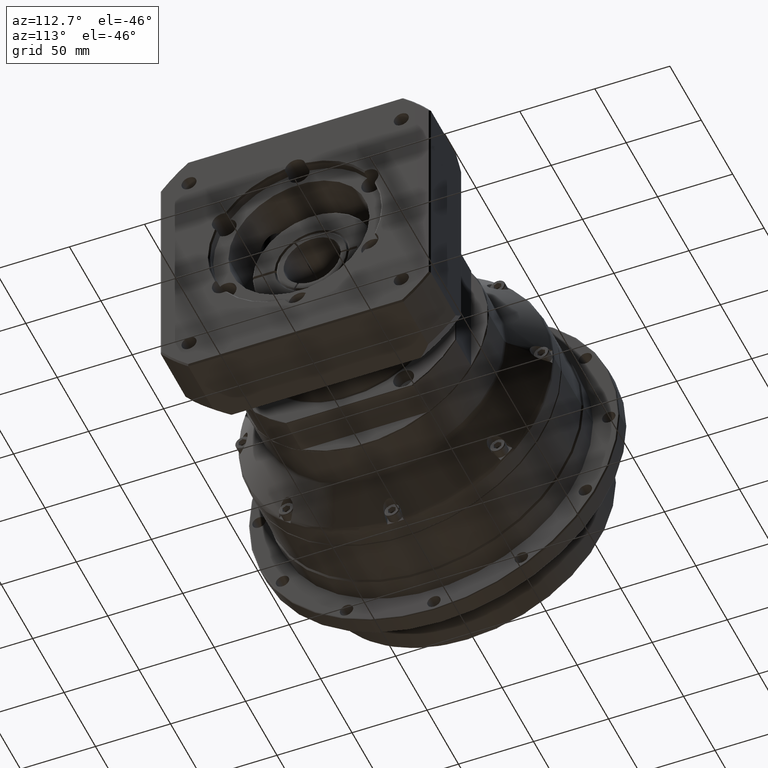
[diagram: clean part render]
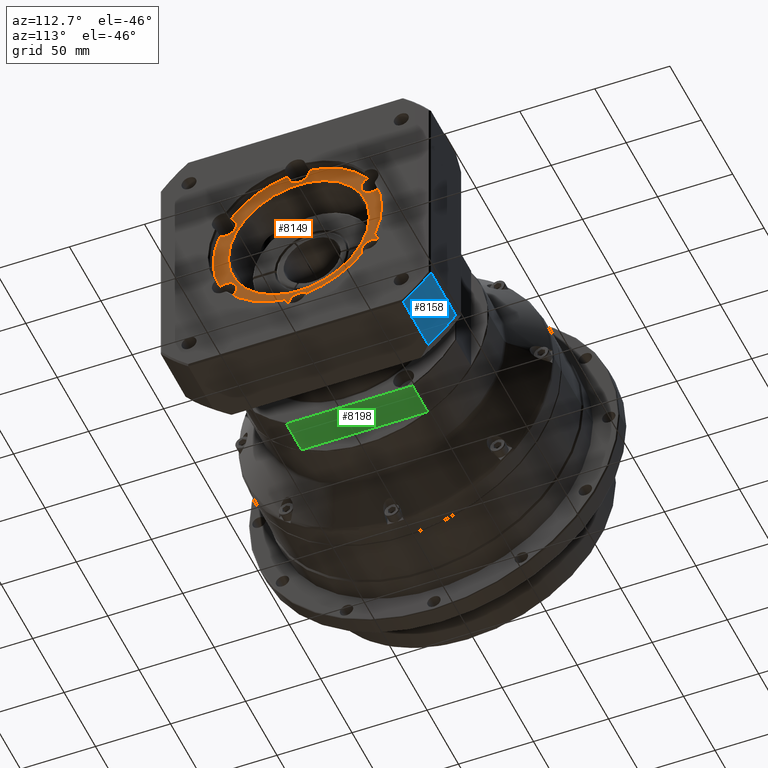
[diagram: same view with three faces highlighted in distinct colors, each labeled with its STEP entity id]
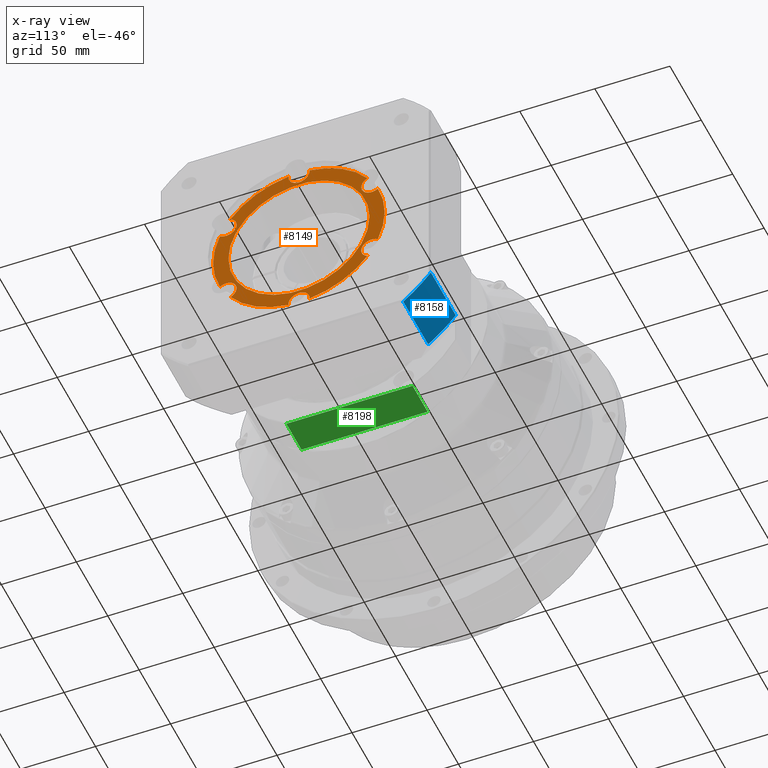
[diagram: x-ray of the same camera — body ghosted, the three highlighted faces saturated]
A machine part, auxiliary view with three faces highlighted in distinct colors.
The next image is the same camera in x-ray (body ghosted, the three faces saturated) — at least one of them is partly hidden behind the body in this view.
Their STEP definitions:

[orange] entity #8149 — the highlighted planar face has unit normal (-1, -0, 0).
#1722=FACE_BOUND('',#2841,.T.);
#2152=FACE_OUTER_BOUND('',#2840,.T.);
#2840=EDGE_LOOP('',(#6361,#6362,#6363,#6364,#6365,#6366,#6367,#6368,#6369,
#6370,#6371,#6372));
#2841=EDGE_LOOP('',(#6373));
#3563=CIRCLE('',#8832,7.);
#3584=CIRCLE('',#8856,7.);
#3586=CIRCLE('',#8860,7.);
#3589=CIRCLE('',#8865,7.);
#3592=CIRCLE('',#8870,7.);
#3595=CIRCLE('',#8875,7.);
#3602=CIRCLE('',#8894,47.);
#3614=CIRCLE('',#8923,57.15);
#3615=CIRCLE('',#8924,57.15);
#3616=CIRCLE('',#8925,57.15);
#3617=CIRCLE('',#8926,57.15);
#3618=CIRCLE('',#8927,57.15);
#3619=CIRCLE('',#8928,57.15);
#4134=VERTEX_POINT('',#12910);
#4135=VERTEX_POINT('',#12912);
#4160=VERTEX_POINT('',#12974);
#4161=VERTEX_POINT('',#12976);
#4164=VERTEX_POINT('',#12992);
#4165=VERTEX_POINT('',#12994);
#4169=VERTEX_POINT('',#13012);
#4170=VERTEX_POINT('',#13014);
#4174=VERTEX_POINT('',#13032);
#4175=VERTEX_POINT('',#13034);
#4178=VERTEX_POINT('',#13047);
#4179=VERTEX_POINT('',#13049);
#4186=VERTEX_POINT('',#13111);
#4952=EDGE_CURVE('',#4135,#4134,#3563,.T.);
#4981=EDGE_CURVE('',#4161,#4160,#3584,.T.);
#4987=EDGE_CURVE('',#4165,#4164,#3586,.T.);
#4994=EDGE_CURVE('',#4170,#4169,#3589,.T.);
#5001=EDGE_CURVE('',#4175,#4174,#3592,.T.);
#5007=EDGE_CURVE('',#4179,#4178,#3595,.T.);
#5026=EDGE_CURVE('',#4186,#4186,#3602,.T.);
#5041=EDGE_CURVE('',#4165,#4169,#3614,.T.);
#5042=EDGE_CURVE('',#4135,#4164,#3615,.T.);
#5043=EDGE_CURVE('',#4161,#4134,#3616,.T.);
#5044=EDGE_CURVE('',#4179,#4160,#3617,.T.);
#5045=EDGE_CURVE('',#4175,#4178,#3618,.T.);
#5046=EDGE_CURVE('',#4170,#4174,#3619,.T.);
#6361=ORIENTED_EDGE('',*,*,#4994,.T.);
#6362=ORIENTED_EDGE('',*,*,#5041,.F.);
#6363=ORIENTED_EDGE('',*,*,#4987,.T.);
#6364=ORIENTED_EDGE('',*,*,#5042,.F.);
#6365=ORIENTED_EDGE('',*,*,#4952,.T.);
#6366=ORIENTED_EDGE('',*,*,#5043,.F.);
#6367=ORIENTED_EDGE('',*,*,#4981,.T.);
#6368=ORIENTED_EDGE('',*,*,#5044,.F.);
#6369=ORIENTED_EDGE('',*,*,#5007,.T.);
#6370=ORIENTED_EDGE('',*,*,#5045,.F.);
#6371=ORIENTED_EDGE('',*,*,#5001,.T.);
#6372=ORIENTED_EDGE('',*,*,#5046,.F.);
#6373=ORIENTED_EDGE('',*,*,#5026,.T.);
#7784=PLANE('',#8922);
#8149=ADVANCED_FACE('',(#2152,#1722),#7784,.F.);
#8832=AXIS2_PLACEMENT_3D('',#12913,#10254,#10255);
#8856=AXIS2_PLACEMENT_3D('',#12977,#10308,#10309);
#8860=AXIS2_PLACEMENT_3D('',#12995,#10318,#10319);
#8865=AXIS2_PLACEMENT_3D('',#13015,#10330,#10331);
#8870=AXIS2_PLACEMENT_3D('',#13035,#10342,#10343);
#8875=AXIS2_PLACEMENT_3D('',#13050,#10354,#10355);
#8894=AXIS2_PLACEMENT_3D('',#13112,#10396,#10397);
#8922=AXIS2_PLACEMENT_3D('',#13190,#10454,#10455);
#8923=AXIS2_PLACEMENT_3D('',#13191,#10456,#10457);
#8924=AXIS2_PLACEMENT_3D('',#13192,#10458,#10459);
#8925=AXIS2_PLACEMENT_3D('',#13193,#10460,#10461);
#8926=AXIS2_PLACEMENT_3D('',#13194,#10462,#10463);
#8927=AXIS2_PLACEMENT_3D('',#13195,#10464,#10465);
#8928=AXIS2_PLACEMENT_3D('',#13196,#10466,#10467);
#10254=DIRECTION('center_axis',(-1.,-2.89619791917429E-17,4.46141766922876E-15));
#10255=DIRECTION('ref_axis',(2.11916807336968E-15,-0.866025403784438,0.500000000000001));
#10308=DIRECTION('center_axis',(-1.,-2.89619791917429E-17,4.46141766922876E-15));
#10309=DIRECTION('ref_axis',(-2.34224959585909E-15,-0.866025403784439,-0.499999999999999));
#10318=DIRECTION('center_axis',(-1.,-2.89619791917429E-17,4.46141766922876E-15));
#10319=DIRECTION('ref_axis',(4.46141766922876E-15,1.5196177649557E-15,1.));
#10330=DIRECTION('center_axis',(-1.,-2.89619791917429E-17,4.46141766922876E-15));
#10331=DIRECTION('ref_axis',(2.34224959585908E-15,0.86602540378444,0.499999999999998));
#10342=DIRECTION('center_axis',(-1.,-2.89619791917429E-17,4.46141766922876E-15));
#10343=DIRECTION('ref_axis',(-2.11916807336968E-15,0.866025403784438,-0.500000000000002));
#10354=DIRECTION('center_axis',(-1.,-2.89619791917429E-17,4.46141766922876E-15));
#10355=DIRECTION('ref_axis',(-4.46141766922876E-15,-1.67822105418786E-15,
-1.));
#10396=DIRECTION('center_axis',(-1.,-2.89619791917429E-17,4.46141766922876E-15));
#10397=DIRECTION('ref_axis',(-4.46141766922876E-15,-1.5196177649557E-15,
-1.));
#10454=DIRECTION('center_axis',(-1.,-2.89619791917429E-17,4.46141766922876E-15));
#10455=DIRECTION('ref_axis',(-5.6843418860808E-15,-2.8421709430404E-15,
-1.));
#10456=DIRECTION('center_axis',(-1.,-2.89619791917429E-17,4.46141766922876E-15));
#10457=DIRECTION('ref_axis',(-4.46141766922876E-15,-1.5196177649557E-15,
-1.));
#10458=DIRECTION('center_axis',(-1.,-2.89619791917429E-17,4.46141766922876E-15));
#10459=DIRECTION('ref_axis',(-4.46141766922876E-15,-1.5196177649557E-15,
-1.));
#10460=DIRECTION('center_axis',(-1.,-2.89619791917429E-17,4.46141766922876E-15));
#10461=DIRECTION('ref_axis',(-4.46141766922876E-15,-1.5196177649557E-15,
-1.));
#10462=DIRECTION('center_axis',(-1.,-2.89619791917429E-17,4.46141766922876E-15));
#10463=DIRECTION('ref_axis',(-4.46141766922876E-15,-1.5196177649557E-15,
-1.));
#10464=DIRECTION('center_axis',(-1.,-2.89619791917429E-17,4.46141766922876E-15));
#10465=DIRECTION('ref_axis',(-4.46141766922876E-15,-1.5196177649557E-15,
-1.));
#10466=DIRECTION('center_axis',(-1.,-2.89619791917429E-17,4.46141766922876E-15));
#10467=DIRECTION('ref_axis',(-4.46141766922876E-15,-1.5196177649557E-15,
-1.));
#12910=CARTESIAN_POINT('',(236.753312733,-168.024842358194,196.075934172702));
#12912=CARTESIAN_POINT('',(236.753312733,-161.062416209975,208.135210005363));
#12913=CARTESIAN_POINT('Origin',(236.753312733,-163.916360124991,201.743418071175));
#12974=CARTESIAN_POINT('',(236.753312733,-161.062416209975,139.351626136987));
#12976=CARTESIAN_POINT('',(236.753312733,-168.024842358194,151.410901969648));
#12977=CARTESIAN_POINT('Origin',(236.753312733,-163.916360124991,145.743418071175));
#12992=CARTESIAN_POINT('',(236.753312733,-122.381363661281,230.467726106889));
#12994=CARTESIAN_POINT('',(236.753312733,-108.456511364843,230.467726106889));
#12995=CARTESIAN_POINT('Origin',(236.753312733,-115.418937513062,229.743418071175));
#13012=CARTESIAN_POINT('',(236.753312733,-69.7754588161492,208.135210005362));
#13014=CARTESIAN_POINT('',(236.753312733,-62.8130326679305,196.075934172701));
#13015=CARTESIAN_POINT('Origin',(236.753312733,-66.9215149011337,201.743418071175));
#13032=CARTESIAN_POINT('',(236.753312733,-62.8130326679307,151.410901969648));
#13034=CARTESIAN_POINT('',(236.753312733,-69.7754588161494,139.351626136987));
#13035=CARTESIAN_POINT('Origin',(236.753312733,-66.9215149011338,145.743418071175));
#13047=CARTESIAN_POINT('',(236.753312733,-108.456511364844,117.019110035461));
#13049=CARTESIAN_POINT('',(236.753312733,-122.381363661281,117.019110035461));
#13050=CARTESIAN_POINT('Origin',(236.753312733,-115.418937513062,117.743418071175));
#13111=CARTESIAN_POINT('',(236.753312733,-162.418937513062,173.743418071175));
#13112=CARTESIAN_POINT('Origin',(236.753312733,-115.418937513062,173.743418071175));
#13190=CARTESIAN_POINT('Origin',(236.753312733,-162.418937513062,173.743418071175));
#13191=CARTESIAN_POINT('Origin',(236.753312733,-115.418937513062,173.743418071175));
#13192=CARTESIAN_POINT('Origin',(236.753312733,-115.418937513062,173.743418071175));
#13193=CARTESIAN_POINT('Origin',(236.753312733,-115.418937513062,173.743418071175));
#13194=CARTESIAN_POINT('Origin',(236.753312733,-115.418937513062,173.743418071175));
#13195=CARTESIAN_POINT('Origin',(236.753312733,-115.418937513062,173.743418071175));
#13196=CARTESIAN_POINT('Origin',(236.753312733,-115.418937513062,173.743418071175));

[blue] entity #8158 — the highlighted cylindrical surface (partial cylindrical patch) has radius 115 mm, axis along (-1, 0, 0).
#341=LINE('',#13163,#678);
#343=LINE('',#13210,#680);
#678=VECTOR('',#10414,39.6217782649107);
#680=VECTOR('',#10490,39.6217782649107);
#1499=CYLINDRICAL_SURFACE('',#8939,115.);
#2161=FACE_OUTER_BOUND('',#2852,.T.);
#2852=EDGE_LOOP('',(#6402,#6403,#6404,#6405));
#3598=CIRCLE('',#8881,115.);
#3606=CIRCLE('',#8900,115.);
#4182=VERTEX_POINT('',#13066);
#4183=VERTEX_POINT('',#13073);
#4189=VERTEX_POINT('',#13157);
#4190=VERTEX_POINT('',#13159);
#5016=EDGE_CURVE('',#4183,#4182,#3598,.T.);
#5031=EDGE_CURVE('',#4190,#4189,#3606,.T.);
#5033=EDGE_CURVE('',#4190,#4183,#341,.T.);
#5049=EDGE_CURVE('',#4182,#4189,#343,.T.);
#6402=ORIENTED_EDGE('',*,*,#5016,.F.);
#6403=ORIENTED_EDGE('',*,*,#5033,.F.);
#6404=ORIENTED_EDGE('',*,*,#5031,.T.);
#6405=ORIENTED_EDGE('',*,*,#5049,.F.);
#8158=ADVANCED_FACE('',(#2161),#1499,.T.);
#8881=AXIS2_PLACEMENT_3D('',#13078,#10368,#10369);
#8900=AXIS2_PLACEMENT_3D('',#13160,#10408,#10409);
#8939=AXIS2_PLACEMENT_3D('',#13209,#10488,#10489);
#10368=DIRECTION('center_axis',(1.,-1.287961770605E-16,-4.46141766922876E-15));
#10369=DIRECTION('ref_axis',(-4.46141766922876E-15,-1.5196177649557E-15,
-1.));
#10408=DIRECTION('center_axis',(1.,-1.287961770605E-16,-4.46141766922876E-15));
#10409=DIRECTION('ref_axis',(-4.46141766922876E-15,-1.5196177649557E-15,
-1.));
#10414=DIRECTION('',(1.,-1.287961770605E-16,-4.46141766922876E-15));
#10488=DIRECTION('center_axis',(-1.,1.287961770605E-16,4.46141766922876E-15));
#10489=DIRECTION('ref_axis',(-4.46141766922876E-15,-1.5196177649557E-15,
-1.));
#10490=DIRECTION('',(-1.,1.287961770605E-16,4.46141766922876E-15));
#13066=CARTESIAN_POINT('',(241.753312733,-25.4189375130624,102.154312754793));
#13073=CARTESIAN_POINT('',(241.753312733,-43.8298321966807,83.7434180711748));
#13078=CARTESIAN_POINT('Origin',(241.753312733,-115.418937513062,173.743418071175));
#13157=CARTESIAN_POINT('',(202.131534468089,-25.4189375130624,102.154312754793));
#13159=CARTESIAN_POINT('',(202.131534468089,-43.8298321966807,83.743418071175));
#13160=CARTESIAN_POINT('Origin',(202.131534468089,-115.418937513062,173.743418071175));
#13163=CARTESIAN_POINT('',(242.753312733,-43.8298321966807,83.7434180711748));
#13209=CARTESIAN_POINT('Origin',(242.753312733,-115.418937513062,173.743418071175));
#13210=CARTESIAN_POINT('',(242.753312733,-25.4189375130624,102.154312754793));

[green] entity #8198 — the highlighted planar face has unit normal (-0, -0, -1).
#349=LINE('',#13328,#686);
#362=LINE('',#13443,#699);
#364=LINE('',#13571,#701);
#367=LINE('',#13576,#704);
#686=VECTOR('',#10578,84.0297566341828);
#699=VECTOR('',#10625,24.);
#701=VECTOR('',#10649,84.0297566341828);
#704=VECTOR('',#10656,24.);
#2201=FACE_OUTER_BOUND('',#2908,.T.);
#2908=EDGE_LOOP('',(#6544,#6545,#6546,#6547));
#4224=VERTEX_POINT('',#13279);
#4227=VERTEX_POINT('',#13313);
#4242=VERTEX_POINT('',#13442);
#4245=VERTEX_POINT('',#13554);
#5080=EDGE_CURVE('',#4227,#4224,#349,.T.);
#5105=EDGE_CURVE('',#4242,#4224,#362,.T.);
#5118=EDGE_CURVE('',#4242,#4245,#364,.T.);
#5121=EDGE_CURVE('',#4227,#4245,#367,.T.);
#6544=ORIENTED_EDGE('',*,*,#5080,.F.);
#6545=ORIENTED_EDGE('',*,*,#5121,.T.);
#6546=ORIENTED_EDGE('',*,*,#5118,.F.);
#6547=ORIENTED_EDGE('',*,*,#5105,.T.);
#7797=PLANE('',#9011);
#8198=ADVANCED_FACE('',(#2201),#7797,.T.);
#9011=AXIS2_PLACEMENT_3D('',#13577,#10657,#10658);
#10578=DIRECTION('',(-2.57445824932046E-16,-1.,2.80976337658213E-15));
#10625=DIRECTION('',(-1.,2.57445824932056E-16,3.59354030689539E-15));
#10649=DIRECTION('',(2.57445824932046E-16,1.,-2.80976337658213E-15));
#10656=DIRECTION('',(1.,-2.57445824932056E-16,-3.59354030689539E-15));
#10657=DIRECTION('center_axis',(-3.59354030689539E-15,-2.80976337658213E-15,
-1.));
#10658=DIRECTION('ref_axis',(0.,-1.,2.8421709430404E-15));
#13279=CARTESIAN_POINT('',(132.253312733,-157.433815830154,102.743418071175));
#13313=CARTESIAN_POINT('',(132.253312733,-73.404059195971,102.743418071175));
#13328=CARTESIAN_POINT('',(132.253312733,-79.9189375130624,102.743418071175));
#13442=CARTESIAN_POINT('',(156.253312733,-157.433815830154,102.743418071175));
#13443=CARTESIAN_POINT('',(156.753312733,-157.433815830154,102.743418071175));
#13554=CARTESIAN_POINT('',(156.253312733,-73.404059195971,102.743418071175));
#13571=CARTESIAN_POINT('',(156.253312733,-79.9189375130624,102.743418071175));
#13576=CARTESIAN_POINT('',(156.753312733,-73.404059195971,102.743418071175));
#13577=CARTESIAN_POINT('Origin',(156.753312733,-44.4189375130624,102.743418071175));